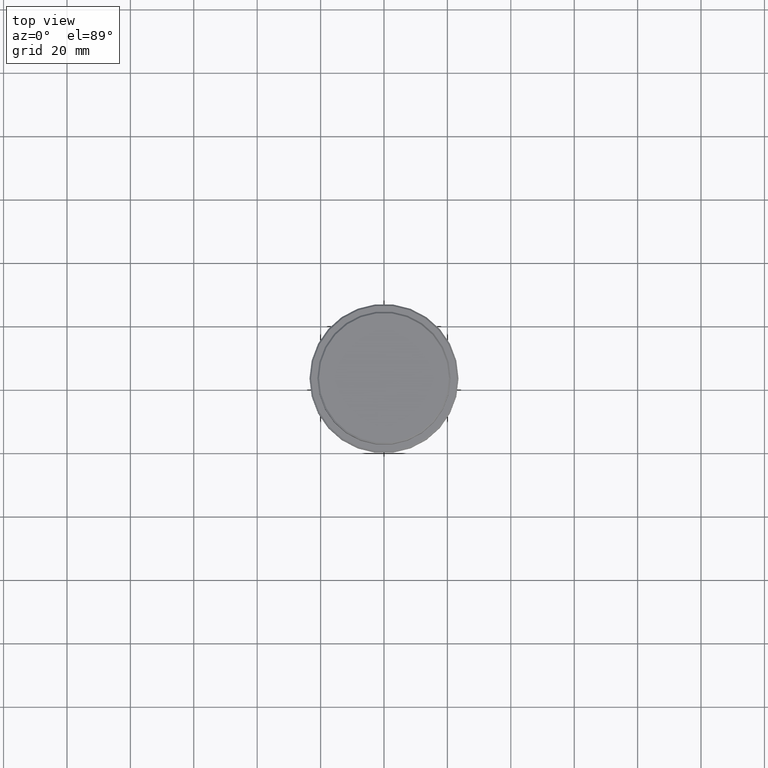
[diagram: clean part render]
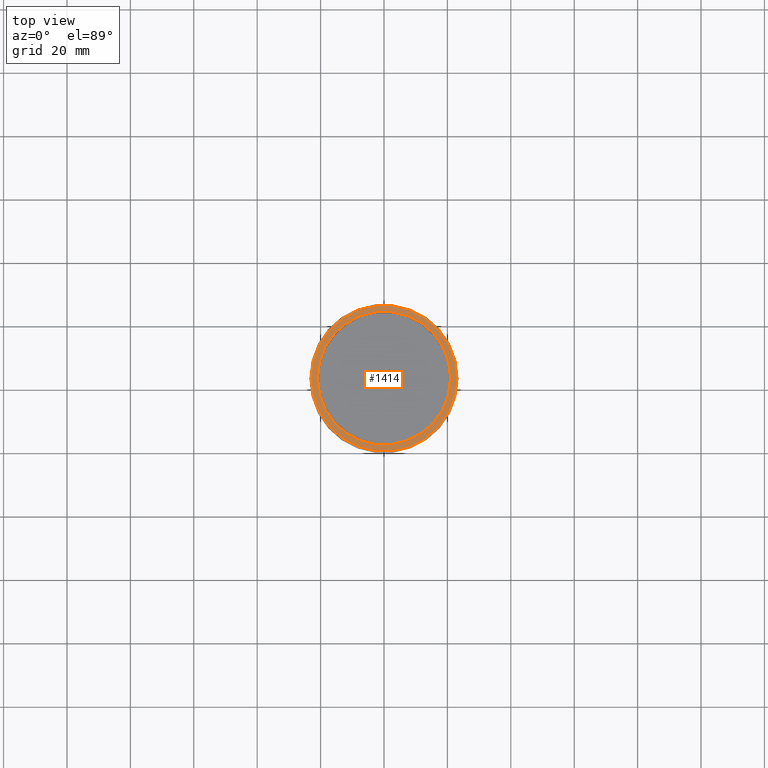
[diagram: same view with one face highlighted and labeled with its STEP entity id]
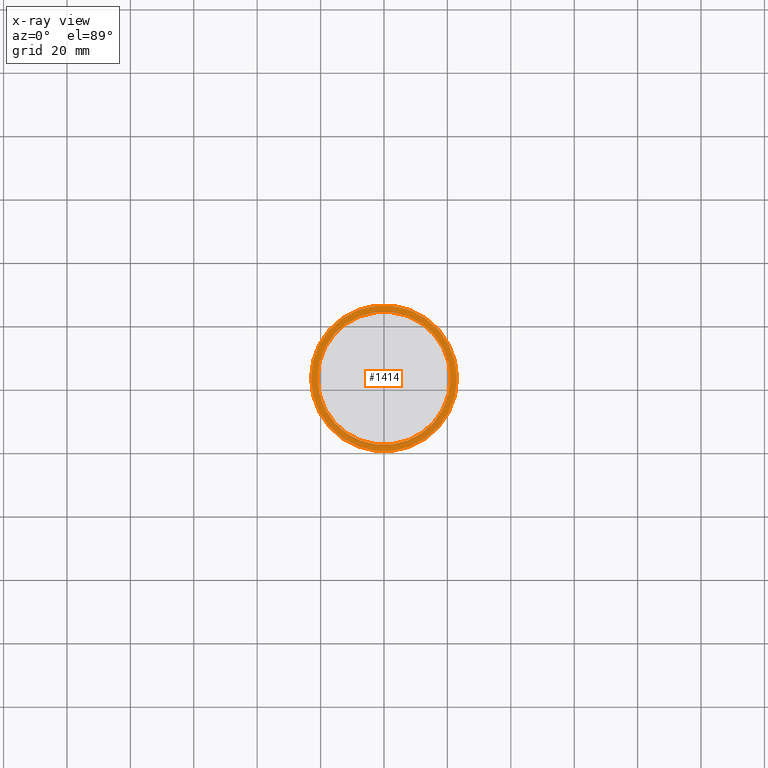
[diagram: x-ray of the same camera — body ghosted, the highlighted face saturated]
A machine part, top view. The second image highlights one B-rep face of the part: STEP entity #1414.
The next image is the same camera in x-ray: the body ghosted, the highlighted face saturated — about 0% of this face is hidden behind the body in this view.
In plain terms, the highlighted planar face has unit normal (0, -0, 1).
Its self-contained STEP definition (entity closure, byte-faithful):
#33 = AXIS2_PLACEMENT_3D ( 'NONE', #473, #907, #1340 ) ;
#56 = FACE_BOUND ( 'NONE', #1301, .T. ) ;
#79 = EDGE_CURVE ( 'NONE', #1148, #228, #353, .T. ) ;
#100 = EDGE_LOOP ( 'NONE', ( #1392, #357 ) ) ;
#101 = DIRECTION ( 'NONE',  ( 1.000000000000000000, 0.000000000000000000, 0.000000000000000000 ) ) ;
#118 = CARTESIAN_POINT ( 'NONE',  ( -20.99999999999999289, 2.571758278209440872E-15, -9.000000000000000000 ) ) ;
#123 = DIRECTION ( 'NONE',  ( 1.000000000000000000, 0.000000000000000000, 0.000000000000000000 ) ) ;
#138 = CIRCLE ( 'NONE', #158, 20.99999999999999289 ) ;
#158 = AXIS2_PLACEMENT_3D ( 'NONE', #1006, #1127, #1019 ) ;
#202 = VERTEX_POINT ( 'NONE', #491 ) ;
#228 = VERTEX_POINT ( 'NONE', #409 ) ;
#249 = FACE_OUTER_BOUND ( 'NONE', #100, .T. ) ;
#328 = EDGE_CURVE ( 'NONE', #957, #202, #961, .T. ) ;
#353 = CIRCLE ( 'NONE', #803, 22.99999999999999645 ) ;
#357 = ORIENTED_EDGE ( 'NONE', *, *, #425, .T. ) ;
#409 = CARTESIAN_POINT ( 'NONE',  ( 22.99999999999999645, 2.847303808017596139E-15, -9.000000000000000000 ) ) ;
#425 = EDGE_CURVE ( 'NONE', #228, #1148, #1358, .T. ) ;
#446 = DIRECTION ( 'NONE',  ( -0.000000000000000000, -0.000000000000000000, 1.000000000000000000 ) ) ;
#473 = CARTESIAN_POINT ( 'NONE',  ( 0.000000000000000000, 0.000000000000000000, -9.000000000000000000 ) ) ;
#486 = PLANE ( 'NONE',  #1016 ) ;
#491 = CARTESIAN_POINT ( 'NONE',  ( 20.99999999999999289, 0.000000000000000000, -9.000000000000000000 ) ) ;
#520 = DIRECTION ( 'NONE',  ( 1.000000000000000000, 0.000000000000000000, 0.000000000000000000 ) ) ;
#535 = CARTESIAN_POINT ( 'NONE',  ( 0.000000000000000000, 0.000000000000000000, -9.000000000000000000 ) ) ;
#568 = DIRECTION ( 'NONE',  ( 0.000000000000000000, -0.000000000000000000, 1.000000000000000000 ) ) ;
#642 = DIRECTION ( 'NONE',  ( -0.000000000000000000, -0.000000000000000000, 1.000000000000000000 ) ) ;
#762 = ORIENTED_EDGE ( 'NONE', *, *, #941, .T. ) ;
#803 = AXIS2_PLACEMENT_3D ( 'NONE', #879, #642, #101 ) ;
#805 = ORIENTED_EDGE ( 'NONE', *, *, #328, .T. ) ;
#807 = CARTESIAN_POINT ( 'NONE',  ( -22.99999999999999645, 0.000000000000000000, -9.000000000000000000 ) ) ;
#879 = CARTESIAN_POINT ( 'NONE',  ( 0.000000000000000000, 0.000000000000000000, -9.000000000000000000 ) ) ;
#907 = DIRECTION ( 'NONE',  ( 0.000000000000000000, 0.000000000000000000, -1.000000000000000000 ) ) ;
#941 = EDGE_CURVE ( 'NONE', #202, #957, #138, .T. ) ;
#957 = VERTEX_POINT ( 'NONE', #118 ) ;
#961 = CIRCLE ( 'NONE', #33, 20.99999999999999289 ) ;
#1006 = CARTESIAN_POINT ( 'NONE',  ( 0.000000000000000000, 0.000000000000000000, -9.000000000000000000 ) ) ;
#1016 = AXIS2_PLACEMENT_3D ( 'NONE', #1130, #568, #123 ) ;
#1019 = DIRECTION ( 'NONE',  ( 1.000000000000000000, 0.000000000000000000, 0.000000000000000000 ) ) ;
#1118 = AXIS2_PLACEMENT_3D ( 'NONE', #535, #446, #520 ) ;
#1127 = DIRECTION ( 'NONE',  ( 0.000000000000000000, 0.000000000000000000, -1.000000000000000000 ) ) ;
#1130 = CARTESIAN_POINT ( 'NONE',  ( 0.000000000000000000, 20.49999999999999645, -9.000000000000000000 ) ) ;
#1148 = VERTEX_POINT ( 'NONE', #807 ) ;
#1301 = EDGE_LOOP ( 'NONE', ( #762, #805 ) ) ;
#1340 = DIRECTION ( 'NONE',  ( 1.000000000000000000, 0.000000000000000000, 0.000000000000000000 ) ) ;
#1358 = CIRCLE ( 'NONE', #1118, 22.99999999999999645 ) ;
#1392 = ORIENTED_EDGE ( 'NONE', *, *, #79, .T. ) ;
#1414 = ADVANCED_FACE ( 'NONE', ( #249, #56 ), #486, .T. ) ;